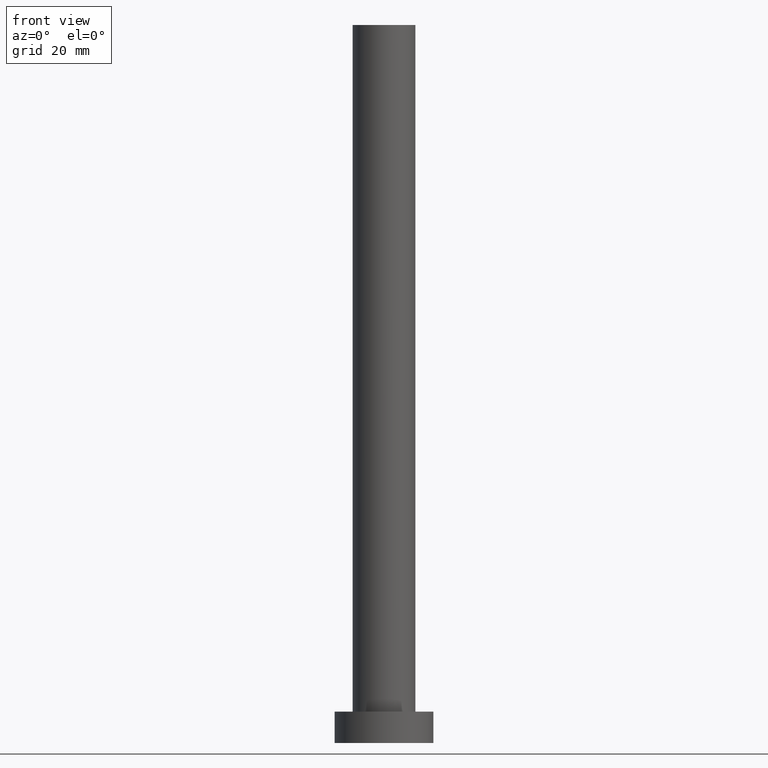
[diagram: clean part render]
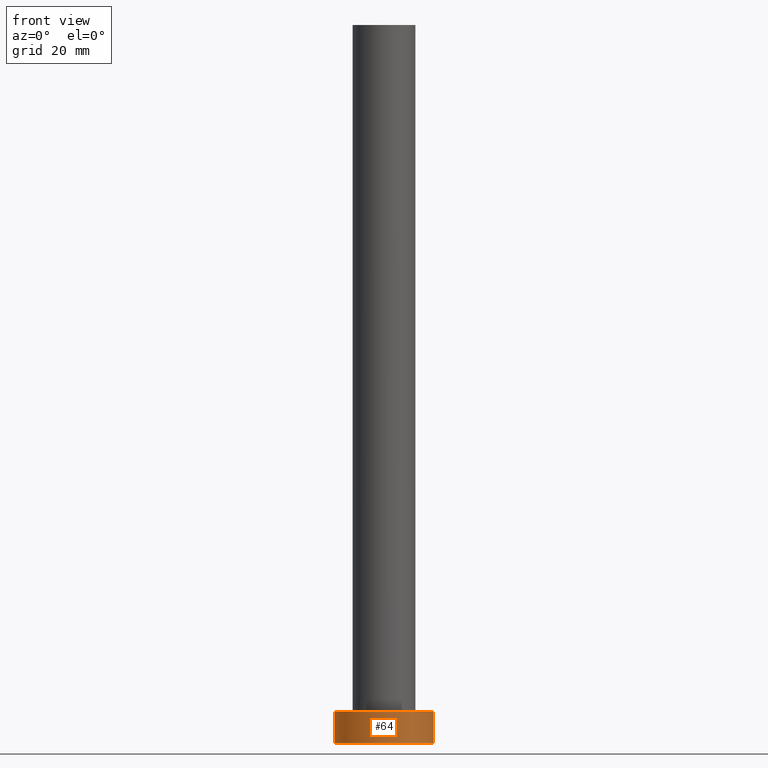
[diagram: same view with one face highlighted and labeled with its STEP entity id]
A machine part, front view. The second image highlights one B-rep face of the part: STEP entity #64.
In plain terms, the highlighted cylindrical surface (partial cylindrical patch) has radius 11 mm, axis along (-0, -0, -1).
Its self-contained STEP definition (entity closure, byte-faithful):
#2 = CYLINDRICAL_SURFACE ( 'NONE', #252, 11.00000000000000000 ) ;
#12 = CARTESIAN_POINT ( 'NONE',  ( -11.00000000000000000, 0.000000000000000000, 7.000000000000000000 ) ) ;
#15 = CIRCLE ( 'NONE', #136, 11.00000000000000000 ) ;
#19 = DIRECTION ( 'NONE',  ( 1.000000000000000000, 0.000000000000000000, 0.000000000000000000 ) ) ;
#24 = DIRECTION ( 'NONE',  ( -0.000000000000000000, -0.000000000000000000, -1.000000000000000000 ) ) ;
#25 = VERTEX_POINT ( 'NONE', #232 ) ;
#29 = VERTEX_POINT ( 'NONE', #12 ) ;
#46 = ORIENTED_EDGE ( 'NONE', *, *, #152, .T. ) ;
#52 = VERTEX_POINT ( 'NONE', #140 ) ;
#64 = ADVANCED_FACE ( 'NONE', ( #243 ), #2, .T. ) ;
#77 = LINE ( 'NONE', #79, #97 ) ;
#79 = CARTESIAN_POINT ( 'NONE',  ( 11.00000000000000000, 1.347111479062088405E-15, 7.000000000000000000 ) ) ;
#84 = EDGE_LOOP ( 'NONE', ( #96, #149, #46, #216 ) ) ;
#95 = VERTEX_POINT ( 'NONE', #130 ) ;
#96 = ORIENTED_EDGE ( 'NONE', *, *, #116, .F. ) ;
#97 = VECTOR ( 'NONE', #102, 1000.000000000000000 ) ;
#99 = DIRECTION ( 'NONE',  ( 1.000000000000000000, 0.000000000000000000, 0.000000000000000000 ) ) ;
#102 = DIRECTION ( 'NONE',  ( -0.000000000000000000, -0.000000000000000000, -1.000000000000000000 ) ) ;
#109 = VECTOR ( 'NONE', #255, 1000.000000000000000 ) ;
#114 = CIRCLE ( 'NONE', #181, 11.00000000000000000 ) ;
#116 = EDGE_CURVE ( 'NONE', #95, #25, #77, .T. ) ;
#122 = DIRECTION ( 'NONE',  ( -1.000000000000000000, 0.000000000000000000, 0.000000000000000000 ) ) ;
#123 = EDGE_CURVE ( 'NONE', #52, #25, #15, .T. ) ;
#130 = CARTESIAN_POINT ( 'NONE',  ( 11.00000000000000000, 1.347111479062088405E-15, 7.000000000000000000 ) ) ;
#134 = LINE ( 'NONE', #221, #109 ) ;
#136 = AXIS2_PLACEMENT_3D ( 'NONE', #197, #238, #19 ) ;
#140 = CARTESIAN_POINT ( 'NONE',  ( -11.00000000000000000, 0.000000000000000000, 0.000000000000000000 ) ) ;
#148 = EDGE_CURVE ( 'NONE', #29, #95, #114, .T. ) ;
#149 = ORIENTED_EDGE ( 'NONE', *, *, #148, .F. ) ;
#152 = EDGE_CURVE ( 'NONE', #29, #52, #134, .T. ) ;
#177 = DIRECTION ( 'NONE',  ( 0.000000000000000000, 0.000000000000000000, 1.000000000000000000 ) ) ;
#181 = AXIS2_PLACEMENT_3D ( 'NONE', #182, #177, #99 ) ;
#182 = CARTESIAN_POINT ( 'NONE',  ( 0.000000000000000000, 0.000000000000000000, 7.000000000000000000 ) ) ;
#197 = CARTESIAN_POINT ( 'NONE',  ( 0.000000000000000000, 0.000000000000000000, 0.000000000000000000 ) ) ;
#216 = ORIENTED_EDGE ( 'NONE', *, *, #123, .T. ) ;
#221 = CARTESIAN_POINT ( 'NONE',  ( -11.00000000000000000, 0.000000000000000000, 7.000000000000000000 ) ) ;
#226 = CARTESIAN_POINT ( 'NONE',  ( 0.000000000000000000, 0.000000000000000000, 7.000000000000000000 ) ) ;
#232 = CARTESIAN_POINT ( 'NONE',  ( 11.00000000000000000, 1.347111479062088405E-15, 0.000000000000000000 ) ) ;
#238 = DIRECTION ( 'NONE',  ( 0.000000000000000000, 0.000000000000000000, 1.000000000000000000 ) ) ;
#243 = FACE_OUTER_BOUND ( 'NONE', #84, .T. ) ;
#252 = AXIS2_PLACEMENT_3D ( 'NONE', #226, #24, #122 ) ;
#255 = DIRECTION ( 'NONE',  ( -0.000000000000000000, -0.000000000000000000, -1.000000000000000000 ) ) ;